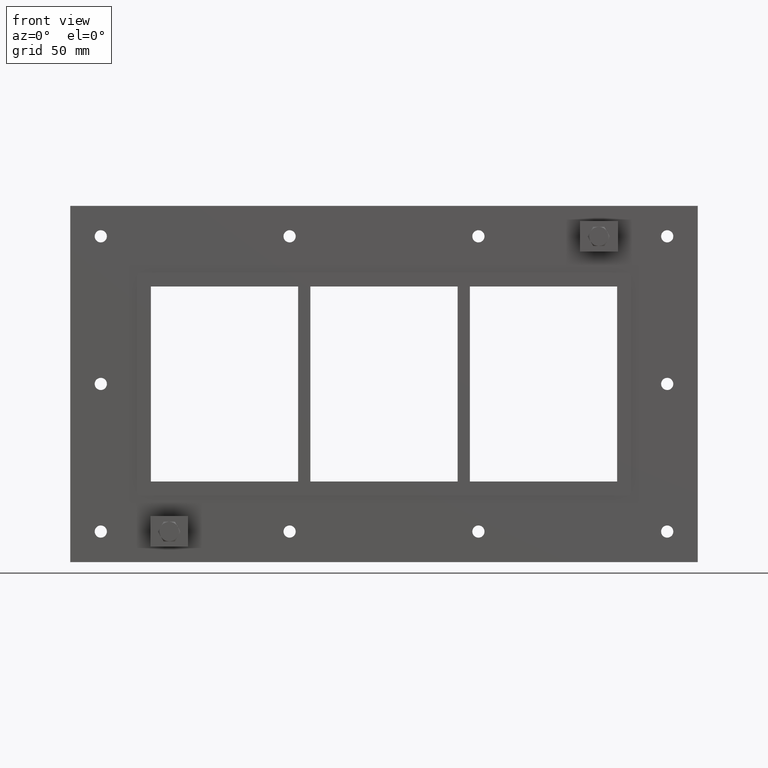
[diagram: clean part render]
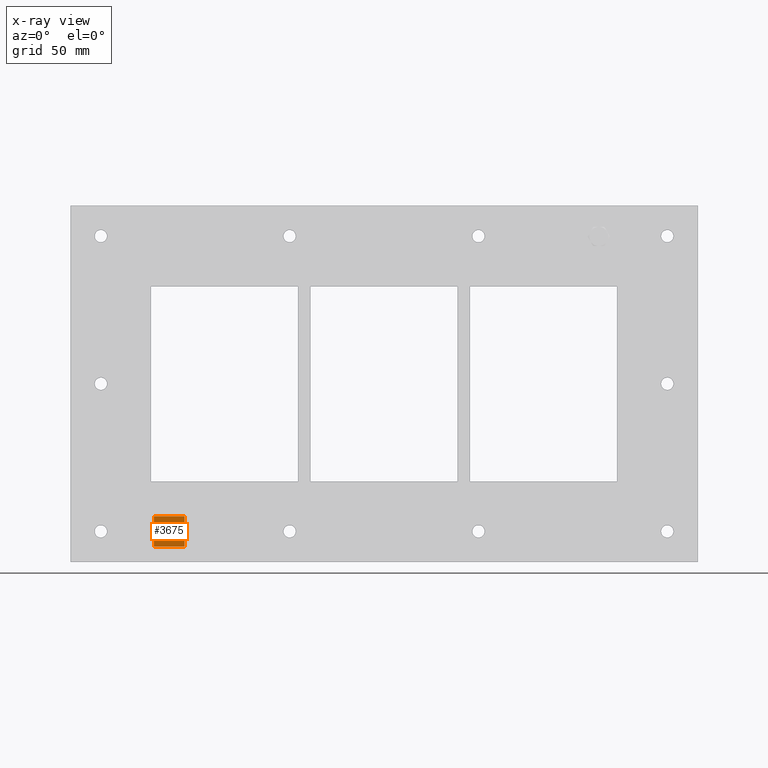
[diagram: x-ray — body ghosted, one internal face saturated and labeled with its STEP entity id]
A machine part, front view, then the same camera in x-ray: the body is ghosted and one INTERNAL B-rep face — a face not visible from any outside direction — is saturated and labeled: STEP entity #3675.
In plain terms, the highlighted planar face has unit normal (0, 1, 0).
Its self-contained STEP definition (entity closure, byte-faithful):
#3530=CARTESIAN_POINT('',(-188.25,0.0,-133.25000000000011));
#3531=VERTEX_POINT('',#3530);
#3532=CARTESIAN_POINT('',(-188.25,0.0,-108.24999999999996));
#3533=VERTEX_POINT('',#3532);
#3534=CARTESIAN_POINT('',(-188.25,0.0,-133.25000000000011));
#3535=DIRECTION('',(0.0,0.0,1.0));
#3536=VECTOR('',#3535,25.000000000000142);
#3537=LINE('',#3534,#3536);
#3538=EDGE_CURVE('',#3531,#3533,#3537,.T.);
#3570=CARTESIAN_POINT('',(-163.25000000000006,0.0,-108.24999999999996));
#3571=VERTEX_POINT('',#3570);
#3572=CARTESIAN_POINT('',(-188.25,0.0,-108.24999999999996));
#3573=DIRECTION('',(1.0,0.0,0.0));
#3574=VECTOR('',#3573,24.999999999999943);
#3575=LINE('',#3572,#3574);
#3576=EDGE_CURVE('',#3533,#3571,#3575,.T.);
#3601=CARTESIAN_POINT('',(-163.25000000000006,0.0,-133.25000000000011));
#3602=VERTEX_POINT('',#3601);
#3603=CARTESIAN_POINT('',(-163.25000000000006,0.0,-108.24999999999996));
#3604=DIRECTION('',(0.0,0.0,-1.0));
#3605=VECTOR('',#3604,25.000000000000156);
#3606=LINE('',#3603,#3605);
#3607=EDGE_CURVE('',#3571,#3602,#3606,.T.);
#3632=CARTESIAN_POINT('',(-163.25000000000006,0.0,-133.25000000000011));
#3633=DIRECTION('',(-1.0,0.0,0.0));
#3634=VECTOR('',#3633,24.999999999999943);
#3635=LINE('',#3632,#3634);
#3636=EDGE_CURVE('',#3602,#3531,#3635,.T.);
#3664=CARTESIAN_POINT('',(-175.75000000000003,0.0,-120.75000000000003));
#3665=DIRECTION('',(0.0,1.0,0.0));
#3666=DIRECTION('',(0.0,0.0,1.0));
#3667=AXIS2_PLACEMENT_3D('',#3664,#3665,#3666);
#3668=PLANE('',#3667);
#3669=ORIENTED_EDGE('',*,*,#3636,.T.);
#3670=ORIENTED_EDGE('',*,*,#3538,.T.);
#3671=ORIENTED_EDGE('',*,*,#3576,.T.);
#3672=ORIENTED_EDGE('',*,*,#3607,.T.);
#3673=EDGE_LOOP('',(#3669,#3670,#3671,#3672));
#3674=FACE_OUTER_BOUND('',#3673,.T.);
#3675=ADVANCED_FACE('',(#3674),#3668,.T.);